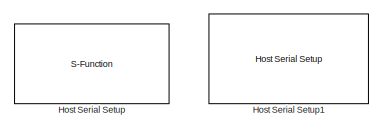
[diagram: root canvas - part 1/2, top left region]
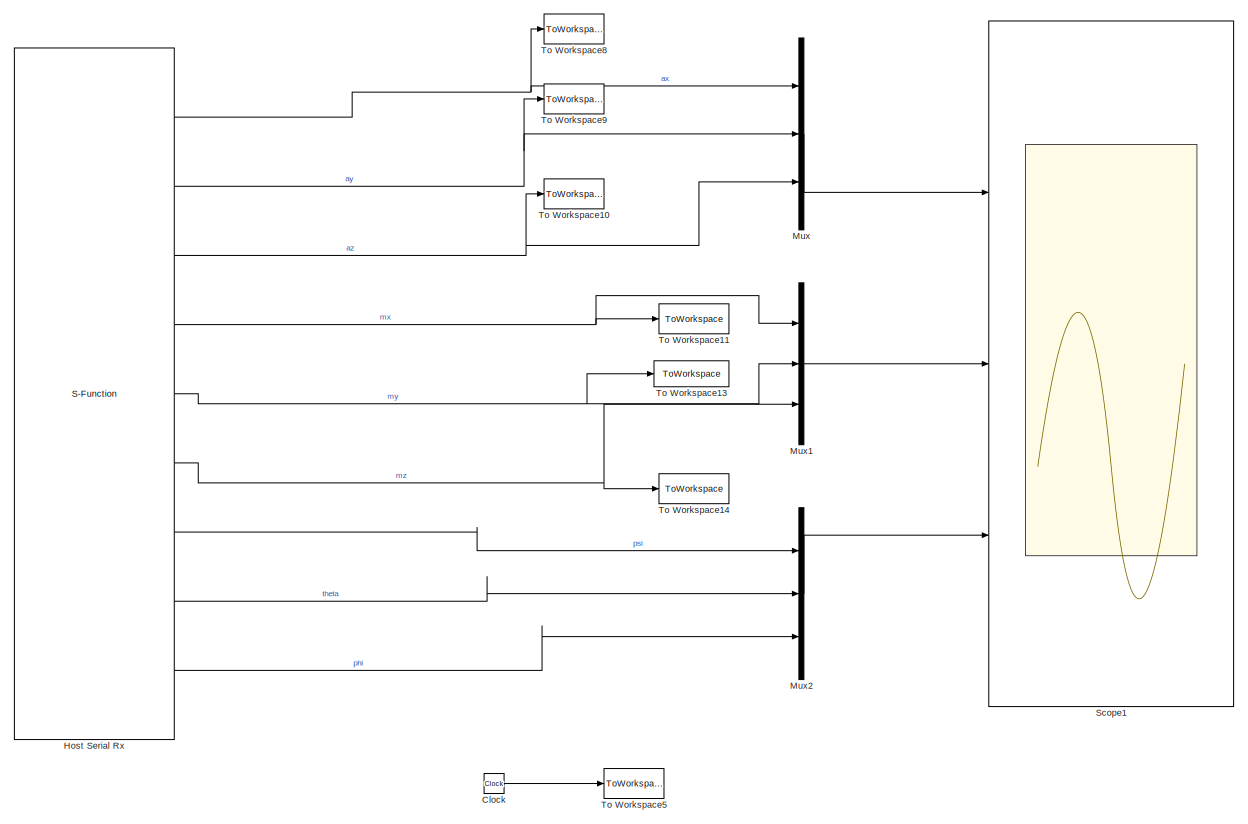
[diagram: root canvas - part 2/2, most of the canvas]
MODEL slx_659b10b47f30
KIND model
CONFIG AbsTol = auto
CONFIG EnableMultiTasking = on
CONFIG FixedStep = auto
CONFIG MaxStep = auto
CONFIG MinStep = auto
CONFIG RelTol = 1e-3
CONFIG SampleTimeConstraint = Unconstrained
CONFIG Solver = VariableStepAuto
CONFIG SolverName = VariableStepAuto
CONFIG StartTime = 0.0
CONFIG StopTime = inf
BLOCK [Clock] Clock
BLOCK [S-Function] Host Serial Rx
  EnableBusSupport = off
  FunctionName = amg_usbconverter_n_serial
  Parameters = configuration,port,transfer,baudrate,stopbit,inputtype,outputtype,binheaderarray,binterminatorarray,asciiheader,asciiterminator,bindatalength,packetmode,timeout,sampletime,initialvalues,blockid
  Ports = [0, 9]
  Priority = 1
  SFcnIsStateOwnerBlock = off
  SFunctionDeploymentMode = off
BLOCK [S-Function] Host Serial Setup
  EnableBusSupport = off
  FunctionName = amg_usbconverter_n_serial
  Parameters = configuration,port,transfer,baudrate,stopbit,inputtype,outputtype,binheaderarray,binterminatorarray,asciiheader,asciiterminator,bindatalength,packetmode,timeout,sampletime,sampletimestr,blockid
  Ports = []
  Priority = 1
  SFcnIsStateOwnerBlock = off
  SFunctionDeploymentMode = off
BLOCK [Reference] Host Serial Setup1  REF=amg_usbconverter_n_connect_lib/Host Serial Setup
  Commented = on
  Ports = []
  SourceBlock = amg_usbconverter_n_connect_lib/Host Serial Setup
  SourceType = amg_usbconverter_n_connect
BLOCK [Mux] Mux
  DisplayOption = bar
  Inputs = 3
  Ports = [3, 1]
BLOCK [Mux] Mux1
  DisplayOption = bar
  Inputs = 3
  Ports = [3, 1]
BLOCK [Mux] Mux2
  DisplayOption = bar
  Inputs = 3
  Ports = [3, 1]
BLOCK [Scope] Scope1
  NumInputPorts = 3
  Ports = [3]
  ScopeSpecificationString = Simulink.scopes.TimeScopeBlockCfg('CurrentConfiguration', extmgr.ConfigurationSet(extmgr.Configuration('Core','General UI',true),extmgr.Configuration('Core','Source UI',true),extmgr.Configuration('Sources','WiredSimulink',true,'DataLoggingVariableName','ScopeData1'),extmgr.Configuration('Visuals','Time Domain',true,'SerializedDisplays',{struct('MinYLimReal','-10.22157','MaxYLimReal','5.73353','YLa...<+2751ch>
BLOCK [ToWorkspace] To Workspace10
  FixptAsFi = on
  MaxDataPoints = inf
  Ports = [1]
  SampleTime = -1
  Save2DSignal = 3-D array (concatenate along third dimension)
  SaveFormat = Timeseries
  VariableName = az
BLOCK [ToWorkspace] To Workspace11
  FixptAsFi = on
  MaxDataPoints = inf
  Ports = [1]
  SampleTime = -1
  Save2DSignal = 3-D array (concatenate along third dimension)
  SaveFormat = Timeseries
  VariableName = wx
BLOCK [ToWorkspace] To Workspace13
  FixptAsFi = on
  MaxDataPoints = inf
  Ports = [1]
  SampleTime = -1
  Save2DSignal = 3-D array (concatenate along third dimension)
  SaveFormat = Timeseries
  VariableName = wy
BLOCK [ToWorkspace] To Workspace14
  FixptAsFi = on
  MaxDataPoints = inf
  Ports = [1]
  SampleTime = -1
  Save2DSignal = 3-D array (concatenate along third dimension)
  SaveFormat = Timeseries
  VariableName = wz
BLOCK [ToWorkspace] To Workspace5
  FixptAsFi = on
  MaxDataPoints = inf
  Ports = [1]
  SampleTime = -1
  Save2DSignal = 3-D array (concatenate along third dimension)
  SaveFormat = Timeseries
  VariableName = clock
BLOCK [ToWorkspace] To Workspace8
  FixptAsFi = on
  MaxDataPoints = inf
  Ports = [1]
  SampleTime = -1
  Save2DSignal = 3-D array (concatenate along third dimension)
  SaveFormat = Timeseries
  VariableName = ax
BLOCK [ToWorkspace] To Workspace9
  FixptAsFi = on
  MaxDataPoints = inf
  Ports = [1]
  SampleTime = -1
  Save2DSignal = 3-D array (concatenate along third dimension)
  SaveFormat = Timeseries
  VariableName = ay
LINE Clock:1 -> To Workspace5:1
NET Host Serial Rx:1 -> Mux:1, To Workspace8:1
NET Host Serial Rx:2 -> Mux:2, To Workspace9:1
NET Host Serial Rx:3 -> Mux:3, To Workspace10:1
NET Host Serial Rx:4 -> Mux1:1, To Workspace11:1
NET Host Serial Rx:5 -> Mux1:2, To Workspace13:1
NET Host Serial Rx:6 -> Mux1:3, To Workspace14:1
LINE Host Serial Rx:7 -> Mux2:1
LINE Host Serial Rx:8 -> Mux2:2
LINE Host Serial Rx:9 -> Mux2:3
LINE Mux1:1 -> Scope1:2
LINE Mux2:1 -> Scope1:3
LINE Mux:1 -> Scope1:1
note: NET lines group one-source signal fan-out (src -> all destinations, sorted); 1:1 wires keep LINE
